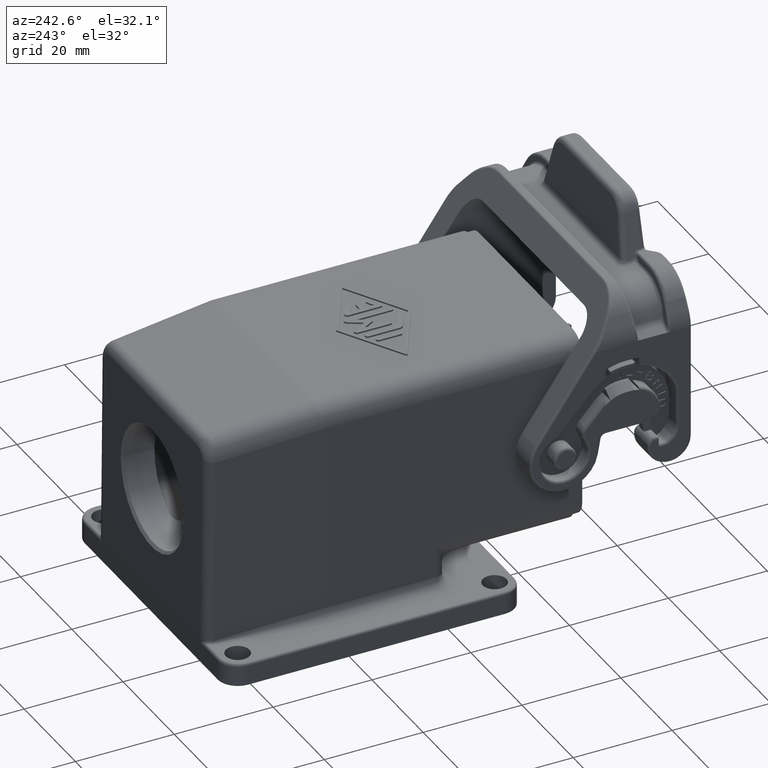
[diagram: clean part render]
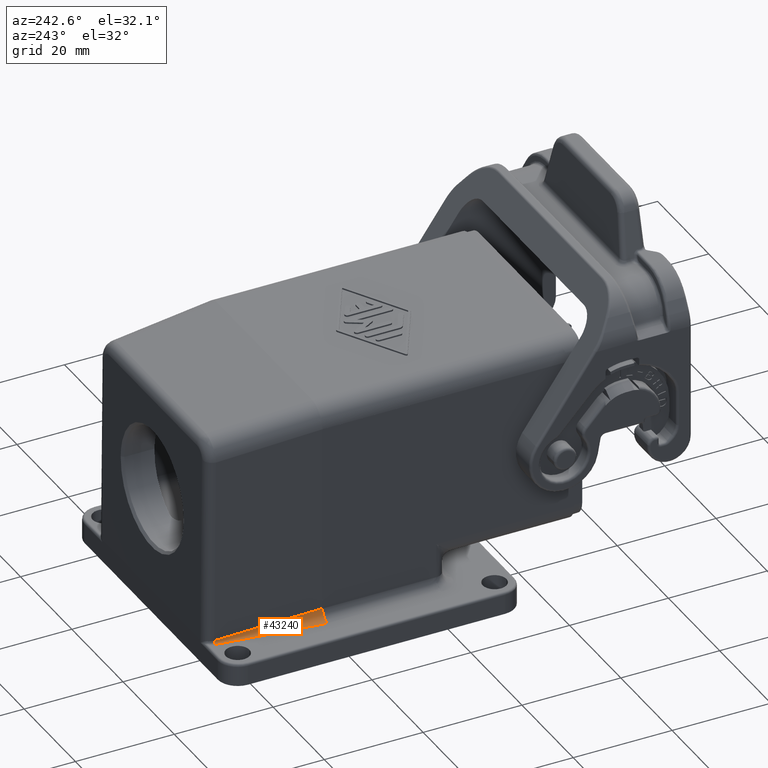
[diagram: same view with one face highlighted and labeled with its STEP entity id]
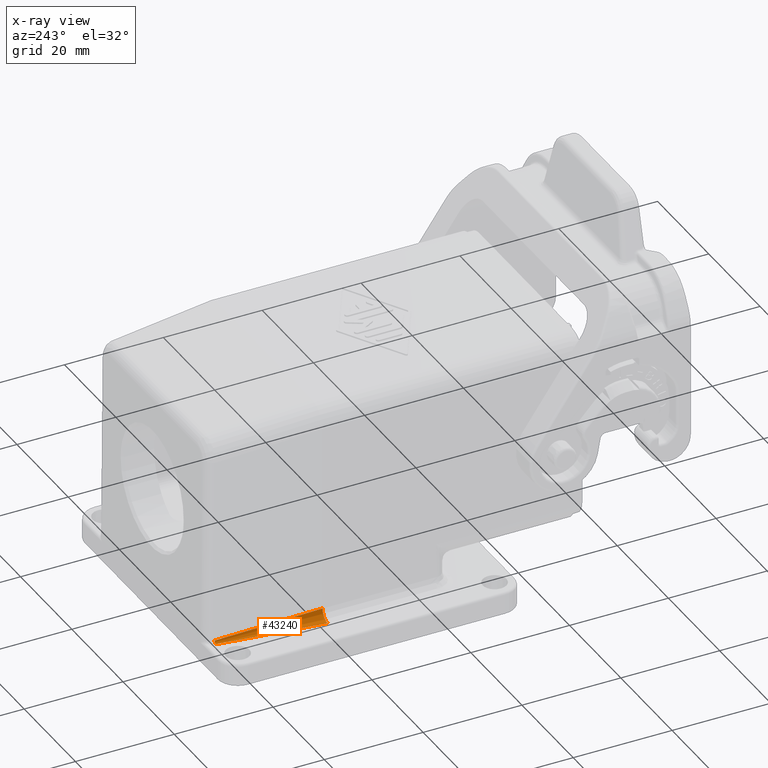
[diagram: x-ray of the same camera — body ghosted, the highlighted face saturated]
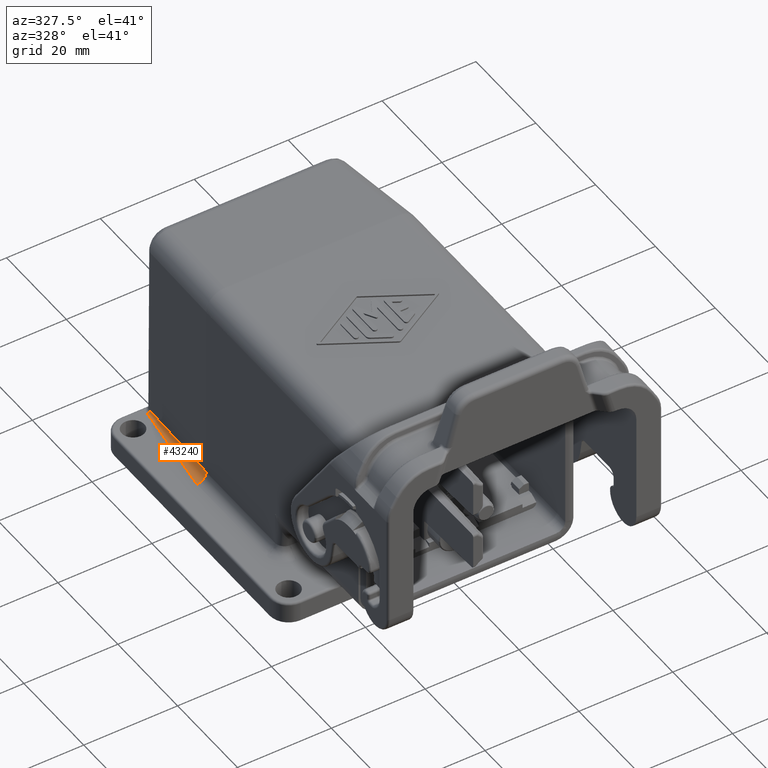
[diagram: same view with one face highlighted and labeled with its STEP entity id]
A machine part, auxiliary view. The second image highlights one B-rep face of the part: STEP entity #43240.
The next image is the same camera in x-ray: the body ghosted, the highlighted face saturated — about 0% of this face is hidden behind the body in this view.
A second angle (auxiliary view) of the same face is appended — the face is thin or edge-on in the first view.
In plain terms, the highlighted face is a freeform B-spline surface patch.
Its self-contained STEP definition (entity closure, byte-faithful):
#5960=CARTESIAN_POINT('',(34.6707212969621,34.3558150518387,
61.9000000000002));
#5970=VERTEX_POINT('',#5960);
#6000=CARTESIAN_POINT('',(55.7856227653352,31.456037056386,
61.9000000000002));
#6010=CARTESIAN_POINT('',(55.6177868440049,31.4791559554632,
61.9000000000002));
#6020=CARTESIAN_POINT('',(55.4320211842505,31.4957162257692,
61.9000000000002));
#6030=CARTESIAN_POINT('',(51.914932775537,31.980184695464,
61.9000000000002));
#6040=CARTESIAN_POINT('',(48.5488930632468,32.4438466563931,
61.9000000000002));
#6050=CARTESIAN_POINT('',(41.7021577113219,33.3869640912959,
61.9000000000002));
#6060=CARTESIAN_POINT('',(38.2214620716871,33.8664195652696,
61.9000000000002));
#6070=CARTESIAN_POINT('',(34.7174066017549,34.3490927864028,
61.9000000000002));
#6080=CARTESIAN_POINT('',(34.6940830052929,34.3525970459858,
61.9000000000002));
#6090=CARTESIAN_POINT('',(34.6707212969621,34.3558150518387,
61.9000000000002));
#6100=B_SPLINE_CURVE_WITH_KNOTS('',3,(#6000,#6010,#6020,#6030,#6040,
#6050,#6060,#6070,#6080,#6090),.UNSPECIFIED.,.F.,.F.,(4,2,2,2,4),(0.,
0.457424939726552,10.6508959790019,21.1915827301419,21.2623239494897),
.UNSPECIFIED.);
#6110=CARTESIAN_POINT('',(55.7856227653356,31.456037056386,
61.9000000000002));
#6120=VERTEX_POINT('',#6110);
#6130=EDGE_CURVE('',#6120,#5970,#6100,.T.);
#42490=CARTESIAN_POINT('',(55.7856227653352,31.456037056386,
61.9000000000002));
#42500=CARTESIAN_POINT('',(55.6177868440049,31.4791559554632,
61.9000000000002));
#42510=CARTESIAN_POINT('',(55.4320211842505,31.4957162257692,
61.9000000000002));
#42520=CARTESIAN_POINT('',(51.914932775537,31.980184695464,
61.9000000000002));
#42530=CARTESIAN_POINT('',(48.5488930632468,32.4438466563931,
61.9000000000002));
#42540=CARTESIAN_POINT('',(41.7021577113219,33.3869640912959,
61.9000000000002));
#42550=CARTESIAN_POINT('',(38.2214620716871,33.8664195652696,
61.9000000000002));
#42560=CARTESIAN_POINT('',(34.7174066017549,34.3490927864028,
61.9000000000002));
#42570=CARTESIAN_POINT('',(34.6940830052929,34.3525970459858,
61.9000000000002));
#42580=CARTESIAN_POINT('',(34.6707212969621,34.3558150518387,
61.9000000000002));
#42590=CARTESIAN_POINT('',(55.8244310665929,32.6266936072483,
61.9000000000002));
#42600=CARTESIAN_POINT('',(55.6711235735453,32.642539463575,
61.9000000000002));
#42610=CARTESIAN_POINT('',(55.5090496625554,32.6535480818098,
61.9000000000002));
#42620=CARTESIAN_POINT('',(51.981952775429,32.9914404573599,
61.9000000000002));
#42630=CARTESIAN_POINT('',(48.6066139706396,33.3147896626133,
61.9000000000002));
#42640=CARTESIAN_POINT('',(41.7409636828264,33.9725021746022,
61.9000000000002));
#42650=CARTESIAN_POINT('',(38.2506521998027,34.3068654813379,
61.9000000000002));
#42660=CARTESIAN_POINT('',(34.7369192307316,34.6434726046485,
61.9000000000002));
#42670=CARTESIAN_POINT('',(34.7132830071553,34.6458897621985,
61.9000000000002));
#42680=CARTESIAN_POINT('',(34.68970702259,34.6481437772525,
61.9000000000002));
#42690=CARTESIAN_POINT('',(55.8316053545881,33.4545149999992,
62.7287003609994));
#42700=CARTESIAN_POINT('',(55.6914893457195,33.4638010532936,
62.7256312223871));
#42710=CARTESIAN_POINT('',(55.5630183835462,33.4723153423542,
62.7205848290947));
#42720=CARTESIAN_POINT('',(52.0293430718277,33.7065062641105,
62.6166344592447));
#42730=CARTESIAN_POINT('',(48.6474288156732,33.9306393683385,
62.5172007061056));
#42740=CARTESIAN_POINT('',(41.7684036484278,34.3865401239511,
62.3149462317137));
#42750=CARTESIAN_POINT('',(38.2712927373369,34.6183077753356,
62.2121255104608));
#42760=CARTESIAN_POINT('',(34.7507118571355,34.8516308762775,
62.1086147384603));
#42770=CARTESIAN_POINT('',(34.7272543401007,34.8531855005856,
62.1079003456306));
#42780=CARTESIAN_POINT('',(34.7037847601385,34.8547409243525,
62.1072103534377));
#42790=CARTESIAN_POINT('',(55.8316053545881,33.4545149999992,
63.9000000000002));
#42800=CARTESIAN_POINT('',(55.6914893457195,33.4638010532936,
63.8900543153862));
#42810=CARTESIAN_POINT('',(55.5630183835462,33.4723153423542,
63.8809352169893));
#42820=CARTESIAN_POINT('',(52.0293430718277,33.7065062641105,
63.6301086307721));
#42830=CARTESIAN_POINT('',(48.6474288156732,33.9306393683385,
63.3900543153862));
#42840=CARTESIAN_POINT('',(41.7684036484278,34.3865401239511,
62.9017688202585));
#42850=CARTESIAN_POINT('',(38.2712927373369,34.6183077753356,
62.6535376405168));
#42860=CARTESIAN_POINT('',(34.7507118289028,34.8516308781486,
62.4036405184366));
#42870=CARTESIAN_POINT('',(34.727256661704,34.8531853467235,
62.4018207666567));
#42880=CARTESIAN_POINT('',(34.7037885506444,34.8547406731404,
62.40015495821));
#42890=(BOUNDED_SURFACE() B_SPLINE_SURFACE(3,3,((#42490,#42590,#42690,
#42790),(#42500,#42600,#42700,#42800),(#42510,#42610,#42710,#42810),(
#42520,#42620,#42720,#42820),(#42530,#42630,#42730,#42830),(#42540,
#42640,#42740,#42840),(#42550,#42650,#42750,#42850),(#42560,#42660,
#42760,#42860),(#42570,#42670,#42770,#42870),(#42580,#42680,#42780,
#42880)),.UNSPECIFIED.,.F.,.F.,.F.) B_SPLINE_SURFACE_WITH_KNOTS((4,2,2,2
,4),(4,4),(0.,0.457424939726552,10.6508959790019,21.1915827301419,
21.2623239494897),(0.,1.),.UNSPECIFIED.) GEOMETRIC_REPRESENTATION_ITEM()
 RATIONAL_B_SPLINE_SURFACE(((1.,0.804725757314376,0.804725757314376,1.),
(1.,0.80473199714688,0.80473199714688,1.),(1.,0.804740230951611,
0.804740230951611,1.),(1.,0.804737854124365,0.804737854124365,1.),(1.,
0.804737854124365,0.804737854124365,1.),(1.,0.804737854124364,
0.804737854124364,1.),(1.,0.804737854124366,0.804737854124366,1.),(1.,
0.804737866012001,0.804737866012001,1.),(1.,0.804737838669809,
0.804737838669809,1.),(1.,0.8047376473529,0.8047376473529,1.))) 
REPRESENTATION_ITEM('') SURFACE());
#42900=CARTESIAN_POINT('',(34.7037885506444,34.8547406731404,
62.40015495821));
#42910=CARTESIAN_POINT('',(34.7037847601385,34.8547409243525,
62.1072103534377));
#42920=CARTESIAN_POINT('',(34.68970702259,34.6481437772525,
61.9000000000002));
#42930=CARTESIAN_POINT('',(34.6707212969621,34.3558150518387,
61.9000000000002));
#42940=(BOUNDED_CURVE() B_SPLINE_CURVE(3,(#42900,#42910,#42920,#42930),
.UNSPECIFIED.,.F.,.F.) B_SPLINE_CURVE_WITH_KNOTS((4,4),(0.,1.),
.UNSPECIFIED.) CURVE() GEOMETRIC_REPRESENTATION_ITEM() 
RATIONAL_B_SPLINE_CURVE((1.,0.804737647352904,0.804737647352904,1.)) 
REPRESENTATION_ITEM(''));
#42950=CARTESIAN_POINT('',(34.7037885506444,34.8547406731404,
62.40015495821));
#42960=VERTEX_POINT('',#42950);
#42970=EDGE_CURVE('',#42960,#5970,#42940,.T.);
#42980=ORIENTED_EDGE('',*,*,#42970,.T.);
#42990=CARTESIAN_POINT('',(55.8316053545881,33.4545149999992,
63.9000000000002));
#43000=CARTESIAN_POINT('',(55.6914893457195,33.4638010532936,
63.8900543153862));
#43010=CARTESIAN_POINT('',(55.5630183835462,33.4723153423542,
63.8809352169893));
#43020=CARTESIAN_POINT('',(52.0293430718277,33.7065062641105,
63.6301086307721));
#43030=CARTESIAN_POINT('',(48.6474288156732,33.9306393683385,
63.3900543153862));
#43040=CARTESIAN_POINT('',(41.7684036484278,34.3865401239511,
62.9017688202585));
#43050=CARTESIAN_POINT('',(38.2712927373369,34.6183077753356,
62.6535376405168));
#43060=CARTESIAN_POINT('',(34.7507118289028,34.8516308781486,
62.4036405184366));
#43070=CARTESIAN_POINT('',(34.727256661704,34.8531853467235,
62.4018207666567));
#43080=CARTESIAN_POINT('',(34.7037885506444,34.8547406731404,
62.40015495821));
#43090=B_SPLINE_CURVE_WITH_KNOTS('',3,(#42990,#43000,#43010,#43020,
#43030,#43040,#43050,#43060,#43070,#43080),.UNSPECIFIED.,.F.,.F.,(4,2,2,
2,4),(0.,0.457424939726552,10.6508959790019,21.1915827301419,
21.2623239494897),.UNSPECIFIED.);
#43100=CARTESIAN_POINT('',(55.8316053545881,33.4545149999992,
63.9000000000002));
#43110=VERTEX_POINT('',#43100);
#43120=EDGE_CURVE('',#43110,#42960,#43090,.T.);
#43130=ORIENTED_EDGE('',*,*,#43120,.T.);
#43140=CARTESIAN_POINT('',(55.7856227653352,31.456037056386,
61.9000000000002));
#43150=CARTESIAN_POINT('',(55.8244310665929,32.6266936072483,
61.9000000000002));
#43160=CARTESIAN_POINT('',(55.8316053545881,33.4545149999992,
62.7287003609994));
#43170=CARTESIAN_POINT('',(55.8316053545881,33.4545149999992,
63.9000000000002));
#43180=(BOUNDED_CURVE() B_SPLINE_CURVE(3,(#43140,#43150,#43160,#43170),
.UNSPECIFIED.,.F.,.F.) B_SPLINE_CURVE_WITH_KNOTS((4,4),(0.,1.),
.UNSPECIFIED.) CURVE() GEOMETRIC_REPRESENTATION_ITEM() 
RATIONAL_B_SPLINE_CURVE((1.,0.804725757314377,0.804725757314377,1.)) 
REPRESENTATION_ITEM(''));
#43190=EDGE_CURVE('',#6120,#43110,#43180,.T.);
#43200=ORIENTED_EDGE('',*,*,#43190,.T.);
#43210=ORIENTED_EDGE('',*,*,#6130,.F.);
#43220=EDGE_LOOP('',(#43210,#43200,#43130,#42980));
#43230=FACE_OUTER_BOUND('',#43220,.T.);
#43240=ADVANCED_FACE('',(#43230),#42890,.F.);